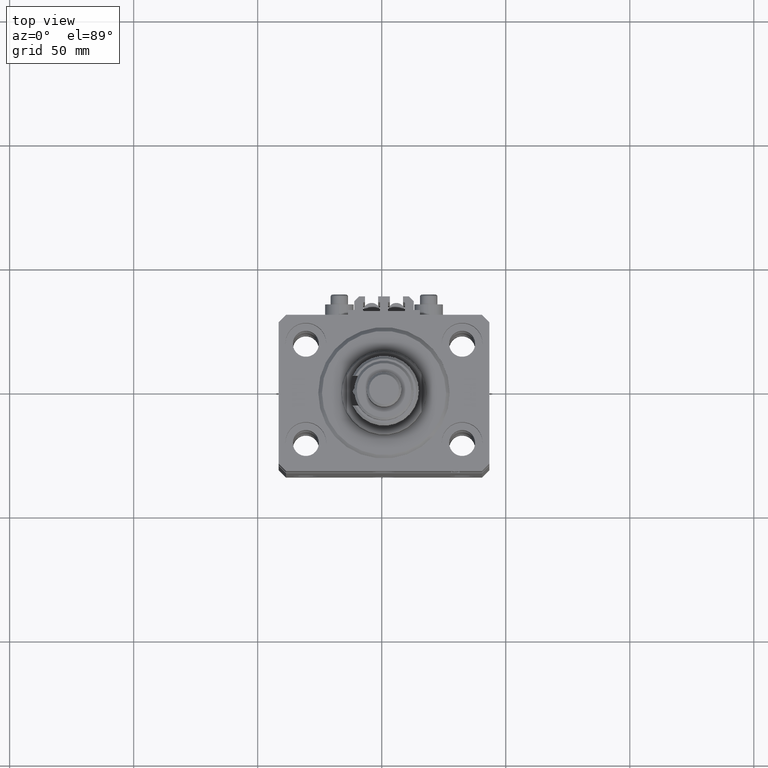
[diagram: clean part render]
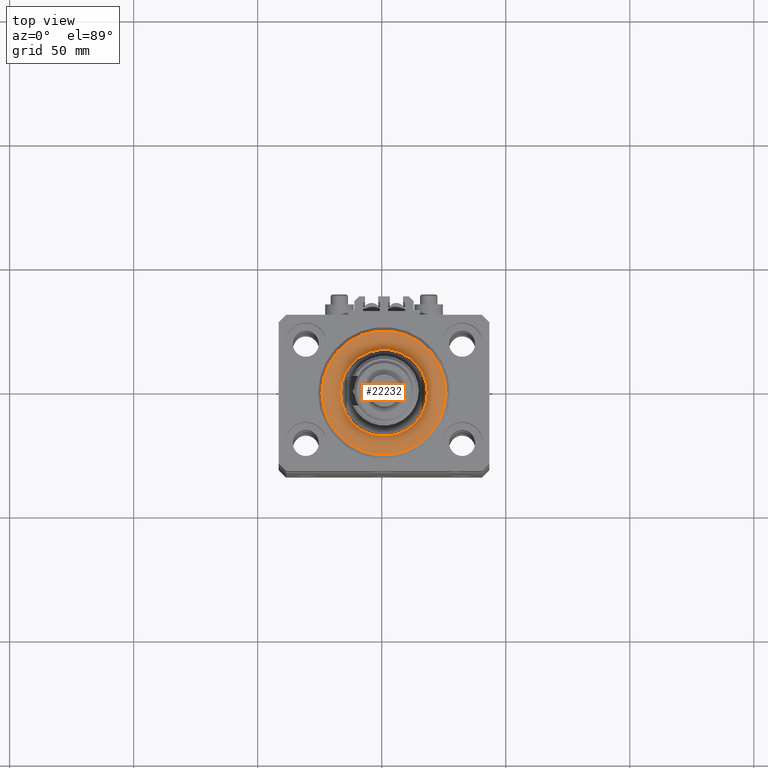
[diagram: same view with one face highlighted and labeled with its STEP entity id]
A machine part, top view. The second image highlights one B-rep face of the part: STEP entity #22232.
In plain terms, the highlighted planar face has unit normal (0, 0, -1).
Its self-contained STEP definition (entity closure, byte-faithful):
#995 = EDGE_LOOP ( 'NONE', ( #16588, #43477 ) ) ;
#3031 = EDGE_LOOP ( 'NONE', ( #40708, #43888 ) ) ;
#8601 = AXIS2_PLACEMENT_3D ( 'NONE', #36146, #23591, #12549 ) ;
#10020 = DIRECTION ( 'NONE',  ( 1.000000000000000000, 0.000000000000000000, 0.000000000000000000 ) ) ;
#10235 = CIRCLE ( 'NONE', #8601, 24.99999999999998224 ) ;
#12549 = DIRECTION ( 'NONE',  ( 1.000000000000000000, 0.000000000000000000, 0.000000000000000000 ) ) ;
#14092 = DIRECTION ( 'NONE',  ( 0.000000000000000000, 0.000000000000000000, 1.000000000000000000 ) ) ;
#14585 = EDGE_CURVE ( 'NONE', #21824, #17734, #10235, .T. ) ;
#14743 = CARTESIAN_POINT ( 'NONE',  ( 0.000000000000000000, 0.000000000000000000, 0.000000000000000000 ) ) ;
#15683 = AXIS2_PLACEMENT_3D ( 'NONE', #14743, #38835, #10020 ) ;
#16588 = ORIENTED_EDGE ( 'NONE', *, *, #24583, .T. ) ;
#17734 = VERTEX_POINT ( 'NONE', #24511 ) ;
#17775 = DIRECTION ( 'NONE',  ( 1.000000000000000000, 0.000000000000000000, 0.000000000000000000 ) ) ;
#18580 = FACE_OUTER_BOUND ( 'NONE', #3031, .T. ) ;
#18898 = CARTESIAN_POINT ( 'NONE',  ( 0.000000000000000000, 0.000000000000000000, 0.000000000000000000 ) ) ;
#20477 = CARTESIAN_POINT ( 'NONE',  ( -17.50000000000000000, 2.143131898507868643E-15, 2.168404344971008868E-16 ) ) ;
#21824 = VERTEX_POINT ( 'NONE', #49290 ) ;
#22232 = ADVANCED_FACE ( 'NONE', ( #46569, #18580 ), #31402, .F. ) ;
#23591 = DIRECTION ( 'NONE',  ( -0.000000000000000000, -0.000000000000000000, -1.000000000000000000 ) ) ;
#24070 = CIRCLE ( 'NONE', #15683, 24.99999999999998224 ) ;
#24511 = CARTESIAN_POINT ( 'NONE',  ( 24.99999999999998224, 0.000000000000000000, 0.000000000000000000 ) ) ;
#24583 = EDGE_CURVE ( 'NONE', #41755, #39952, #24811, .T. ) ;
#24811 = CIRCLE ( 'NONE', #43163, 17.50000000000000000 ) ;
#26337 = AXIS2_PLACEMENT_3D ( 'NONE', #47078, #30357, #42639 ) ;
#30357 = DIRECTION ( 'NONE',  ( 0.000000000000000000, 0.000000000000000000, 1.000000000000000000 ) ) ;
#31402 = PLANE ( 'NONE',  #26337 ) ;
#32870 = EDGE_CURVE ( 'NONE', #17734, #21824, #24070, .T. ) ;
#34697 = CARTESIAN_POINT ( 'NONE',  ( 17.50000000000000000, 0.000000000000000000, 2.168404344971008868E-16 ) ) ;
#35114 = DIRECTION ( 'NONE',  ( 0.000000000000000000, 0.000000000000000000, 1.000000000000000000 ) ) ;
#36146 = CARTESIAN_POINT ( 'NONE',  ( 0.000000000000000000, 0.000000000000000000, 0.000000000000000000 ) ) ;
#36239 = AXIS2_PLACEMENT_3D ( 'NONE', #46021, #14092, #17775 ) ;
#38835 = DIRECTION ( 'NONE',  ( -0.000000000000000000, -0.000000000000000000, -1.000000000000000000 ) ) ;
#39952 = VERTEX_POINT ( 'NONE', #20477 ) ;
#40708 = ORIENTED_EDGE ( 'NONE', *, *, #32870, .T. ) ;
#41488 = DIRECTION ( 'NONE',  ( 1.000000000000000000, 0.000000000000000000, 0.000000000000000000 ) ) ;
#41755 = VERTEX_POINT ( 'NONE', #34697 ) ;
#42037 = CIRCLE ( 'NONE', #36239, 17.50000000000000000 ) ;
#42639 = DIRECTION ( 'NONE',  ( 1.000000000000000000, 0.000000000000000000, -0.000000000000000000 ) ) ;
#43163 = AXIS2_PLACEMENT_3D ( 'NONE', #18898, #35114, #41488 ) ;
#43477 = ORIENTED_EDGE ( 'NONE', *, *, #47009, .T. ) ;
#43888 = ORIENTED_EDGE ( 'NONE', *, *, #14585, .T. ) ;
#46021 = CARTESIAN_POINT ( 'NONE',  ( 0.000000000000000000, 0.000000000000000000, 0.000000000000000000 ) ) ;
#46569 = FACE_BOUND ( 'NONE', #995, .T. ) ;
#47009 = EDGE_CURVE ( 'NONE', #39952, #41755, #42037, .T. ) ;
#47078 = CARTESIAN_POINT ( 'NONE',  ( 0.000000000000000000, 0.000000000000000000, 0.000000000000000000 ) ) ;
#49290 = CARTESIAN_POINT ( 'NONE',  ( -24.99999999999998224, 3.153465507804433615E-15, 0.000000000000000000 ) ) ;